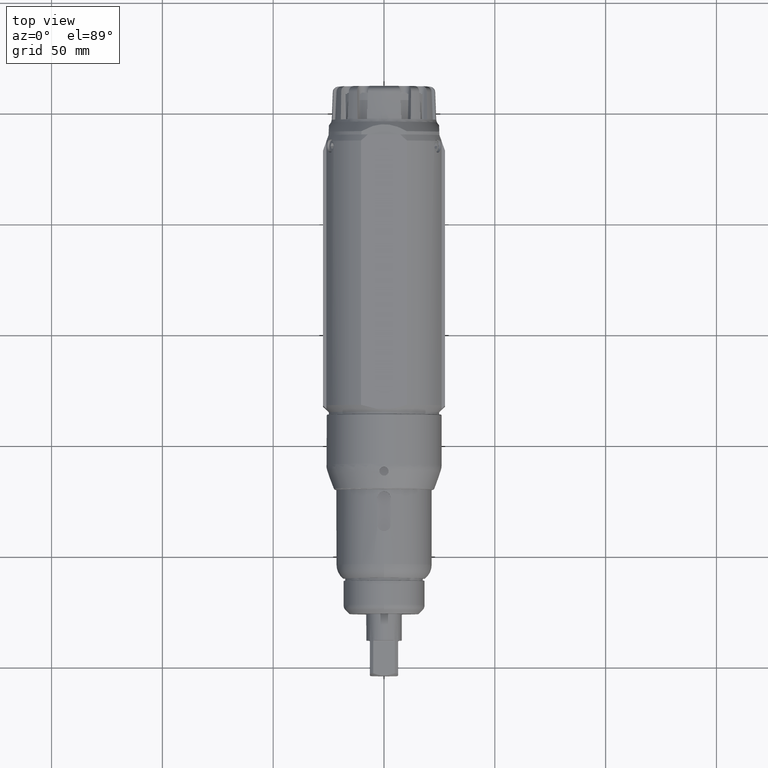
[diagram: clean part render]
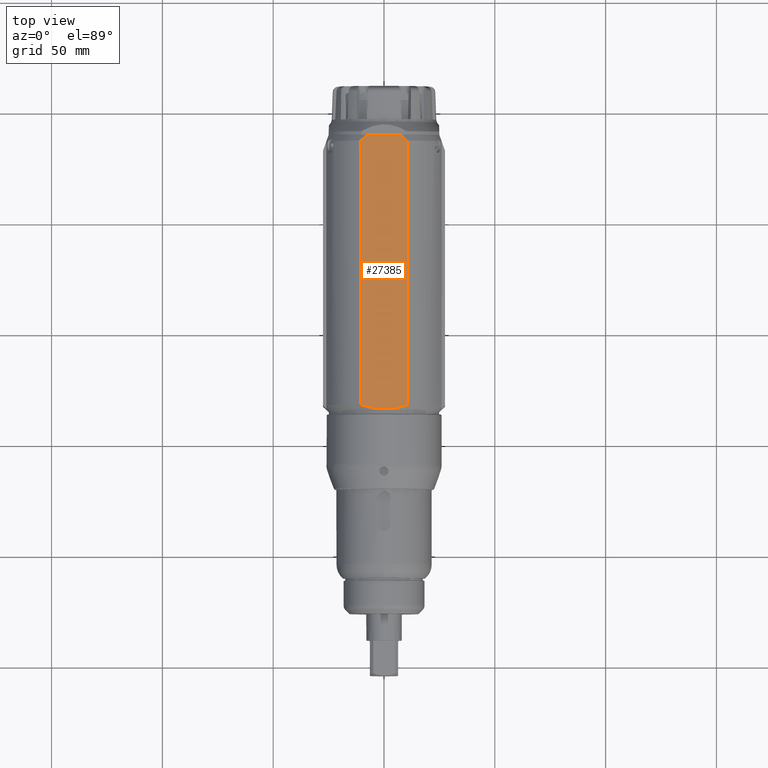
[diagram: same view with one face highlighted and labeled with its STEP entity id]
A machine part, top view. The second image highlights one B-rep face of the part: STEP entity #27385.
In plain terms, the highlighted planar face has unit normal (-0, -0, 1).
Its self-contained STEP definition (entity closure, byte-faithful):
#938=(
BOUNDED_CURVE()
B_SPLINE_CURVE(2,(#40640,#40641,#40642),.UNSPECIFIED.,.F.,.F.)
B_SPLINE_CURVE_WITH_KNOTS((3,3),(0.,0.415462793893091),.UNSPECIFIED.)
CURVE()
GEOMETRIC_REPRESENTATION_ITEM()
RATIONAL_B_SPLINE_CURVE((1.,1.00160480650017,1.))
REPRESENTATION_ITEM('')
);
#939=(
BOUNDED_CURVE()
B_SPLINE_CURVE(2,(#40646,#40647,#40648),.UNSPECIFIED.,.F.,.F.)
B_SPLINE_CURVE_WITH_KNOTS((3,3),(0.,0.415462793893091),.UNSPECIFIED.)
CURVE()
GEOMETRIC_REPRESENTATION_ITEM()
RATIONAL_B_SPLINE_CURVE((1.,1.00160480649988,1.))
REPRESENTATION_ITEM('')
);
#940=(
BOUNDED_CURVE()
B_SPLINE_CURVE(2,(#40651,#40652,#40653),.UNSPECIFIED.,.F.,.F.)
B_SPLINE_CURVE_WITH_KNOTS((3,3),(1.25241040698703,3.76754975221742),
 .UNSPECIFIED.)
CURVE()
GEOMETRIC_REPRESENTATION_ITEM()
RATIONAL_B_SPLINE_CURVE((1.12962962962963,1.21652421652422,1.12962962962963))
REPRESENTATION_ITEM('')
);
#1178=LINE('',#40596,#2905);
#1180=LINE('',#40644,#2907);
#1181=LINE('',#40650,#2908);
#2905=VECTOR('',#31766,10.);
#2907=VECTOR('',#31776,10.);
#2908=VECTOR('',#31777,10.);
#4572=PLANE('',#29037);
#5269=FACE_OUTER_BOUND('',#6858,.T.);
#6858=EDGE_LOOP('',(#18426,#18427,#18428,#18429,#18430,#18431));
#11050=VERTEX_POINT('',#40594);
#11051=VERTEX_POINT('',#40595);
#11057=VERTEX_POINT('',#40639);
#11058=VERTEX_POINT('',#40643);
#11059=VERTEX_POINT('',#40645);
#11060=VERTEX_POINT('',#40649);
#13960=EDGE_CURVE('',#11050,#11051,#1178,.T.);
#13967=EDGE_CURVE('',#11051,#11057,#938,.T.);
#13968=EDGE_CURVE('',#11058,#11057,#1180,.T.);
#13969=EDGE_CURVE('',#11058,#11059,#939,.T.);
#13970=EDGE_CURVE('',#11060,#11059,#1181,.T.);
#13971=EDGE_CURVE('',#11060,#11050,#940,.T.);
#18426=ORIENTED_EDGE('',*,*,#13960,.T.);
#18427=ORIENTED_EDGE('',*,*,#13967,.T.);
#18428=ORIENTED_EDGE('',*,*,#13968,.F.);
#18429=ORIENTED_EDGE('',*,*,#13969,.T.);
#18430=ORIENTED_EDGE('',*,*,#13970,.F.);
#18431=ORIENTED_EDGE('',*,*,#13971,.T.);
#27385=ADVANCED_FACE('',(#5269),#4572,.T.);
#29037=AXIS2_PLACEMENT_3D('',#40638,#31774,#31775);
#31766=DIRECTION('',(2.20483306713371E-17,1.,2.35171747994582E-17));
#31774=DIRECTION('center_axis',(-2.13662520709285E-16,-2.35171747994582E-17,
1.));
#31775=DIRECTION('ref_axis',(1.,-2.20483306713371E-17,2.13662520709285E-16));
#31776=DIRECTION('',(1.,-2.20483306713371E-17,2.13662520709285E-16));
#31777=DIRECTION('',(2.20483306713371E-17,1.,2.35171747994582E-17));
#40594=CARTESIAN_POINT('',(10.3923048454133,15.5,26.));
#40595=CARTESIAN_POINT('',(10.3923048454132,134.752522580545,26.));
#40596=CARTESIAN_POINT('',(10.3923048454133,2.58047730725488E-14,26.));
#40638=CARTESIAN_POINT('Origin',(-10.3923048454133,2.62630390198869E-14,
26.));
#40639=CARTESIAN_POINT('',(7.28010988928049,137.5,26.));
#40640=CARTESIAN_POINT('Ctrl Pts',(10.3923048454133,134.752522580545,26.));
#40641=CARTESIAN_POINT('Ctrl Pts',(8.80791468592749,136.368183107276,26.));
#40642=CARTESIAN_POINT('Ctrl Pts',(7.28010988928049,137.5,26.));
#40643=CARTESIAN_POINT('',(-7.28010988928049,137.5,26.));
#40644=CARTESIAN_POINT('',(10.3923048454133,137.5,26.));
#40645=CARTESIAN_POINT('',(-10.3923048454132,134.752522580545,26.));
#40646=CARTESIAN_POINT('Ctrl Pts',(-7.2801098892805,137.5,26.));
#40647=CARTESIAN_POINT('Ctrl Pts',(-8.80791468592753,136.368183107276,26.));
#40648=CARTESIAN_POINT('Ctrl Pts',(-10.3923048454133,134.752522580545,26.));
#40649=CARTESIAN_POINT('',(-10.3923048454133,15.5,26.));
#40650=CARTESIAN_POINT('',(-10.3923048454133,2.62630390198869E-14,26.));
#40651=CARTESIAN_POINT('Ctrl Pts',(-10.3923048454133,15.5,26.));
#40652=CARTESIAN_POINT('Ctrl Pts',(2.56705564244854E-16,11.6428571428572,
26.));
#40653=CARTESIAN_POINT('Ctrl Pts',(10.3923048454133,15.5,26.));